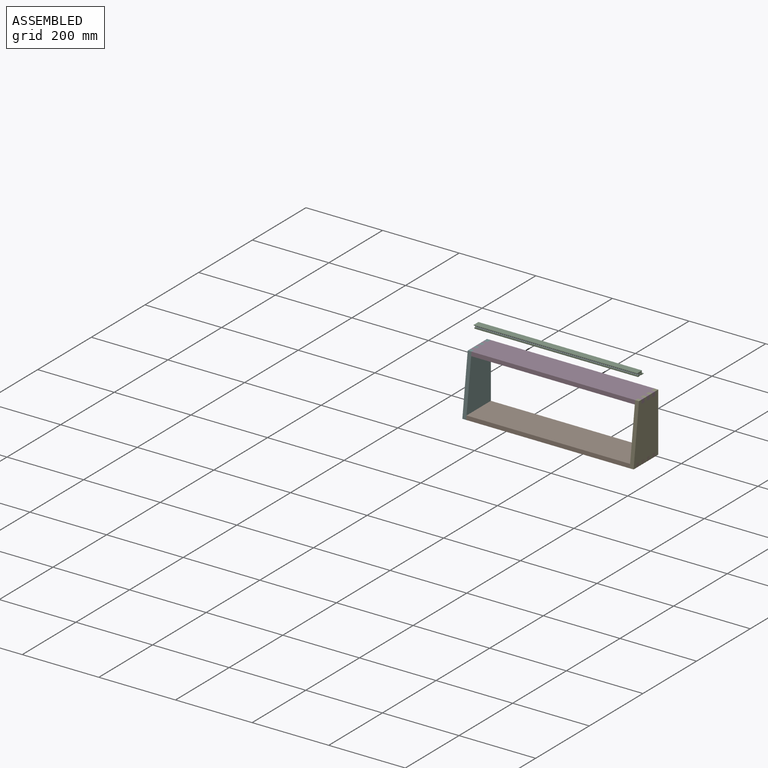
[diagram: assembled view]
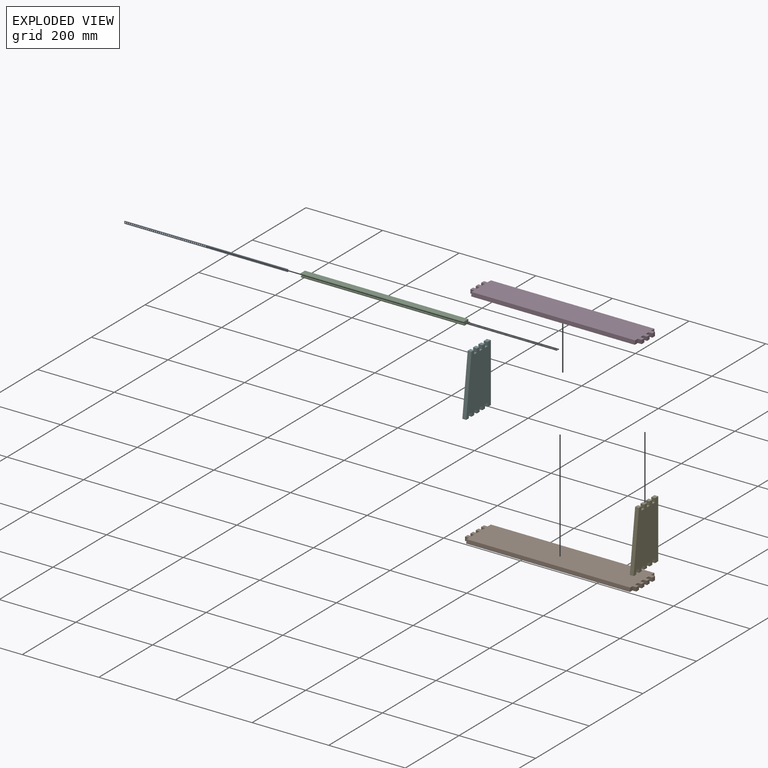
[diagram: exploded view]
GUIDED TOUR — MATED ASSEMBLY (Onshape document 4cea1732e14933e4d0d237e3, AutoMate assembly 4cea1732e14933e4d0d237e3_2bc89f323177ffd0796f1e5a_1a6dffc794c8b1332a4f0395_default)

This assembly has 6 components, labeled P0..P5 below (a component is one placed occurrence of a part; the same part can appear more than once), held together by 4 mates. A mate is a constraint between two components; its type names the relative motion it leaves free:
  FASTENED — locks the two components together rigidly (no relative motion).
Axis/direction vectors are unit vectors and 'through' points are millimeter coordinates, both in the assembly's world frame.

MATES
  1. FASTENED "Fastened 2": P1 <-> P4, direction (0.000, 0.000, -1.000) through (291.91, 82.96, -17.21) mm
  2. FASTENED "Fastened 5": P0 <-> P2, direction (1.000, 0.000, 0.000) through (63.70, 46.97, 176.22) mm
  3. FASTENED "Fastened 1": P1 <-> P5, direction (1.000, 0.000, 0.000) through (-135.09, -9.04, -17.21) mm
  4. FASTENED "Fastened 3": P3 <-> P5, direction (0.000, 0.000, -1.000) through (-145.09, 70.96, 136.19) mm

ASSEMBLY ORDER
  1. P5 — the base component [order verified]
  2. P3 [order verified]
  3. P1 [order verified]
  4. P4 [order verified]
  5. P2 [order verified]
  6. P0 [order verified]
(P1, P3 verified with a relaxed clearance tolerance: the source model stores slight part interference there.)
Order-tag legend:
  [order verified] — this step's position reverses a verified removal order: the component was checked to insert without passing through the ones already placed.

Of the 6 components, 4 carry the full construction recipe — the FeatureScript program that regenerates the part's solid from scratch; the rest are supplied as boundary geometry only.
Each toured component is shown spotlighted twice — in the assembled view, then in the exploded view, where a leader line traces a displaced component back to its assembled socket (saturated green if recipe-attached, orange if geometry-only; every other component desaturated gray) — followed by its recipe or geometry summary and the mates that hold it.
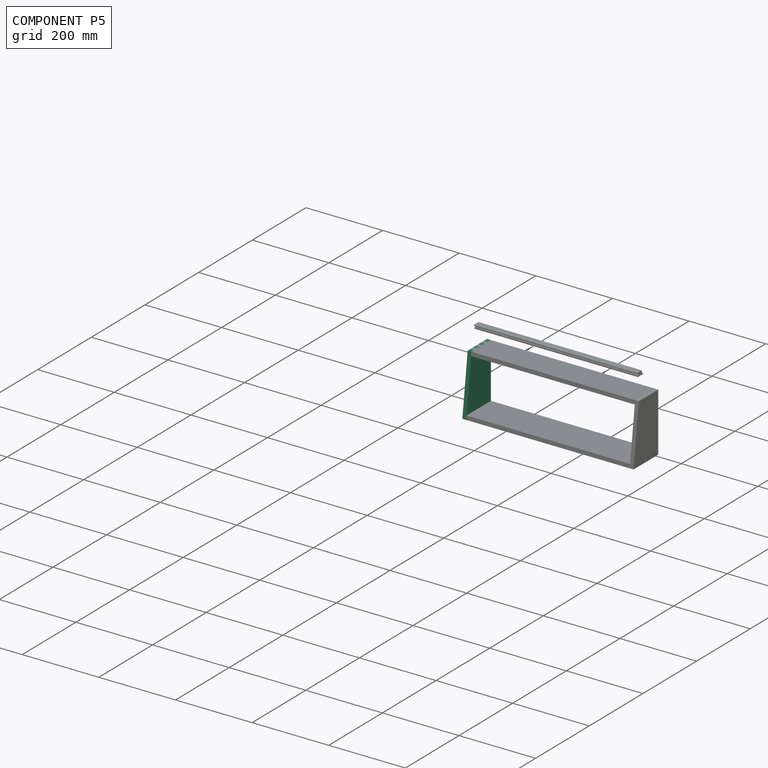
[diagram: component P5 — assembled]
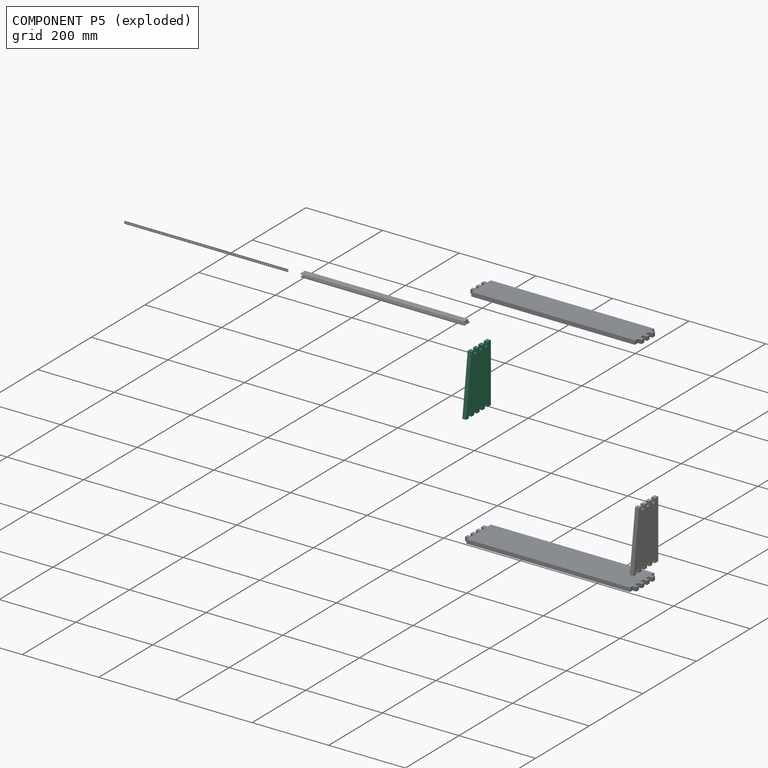
[diagram: component P5 — exploded]
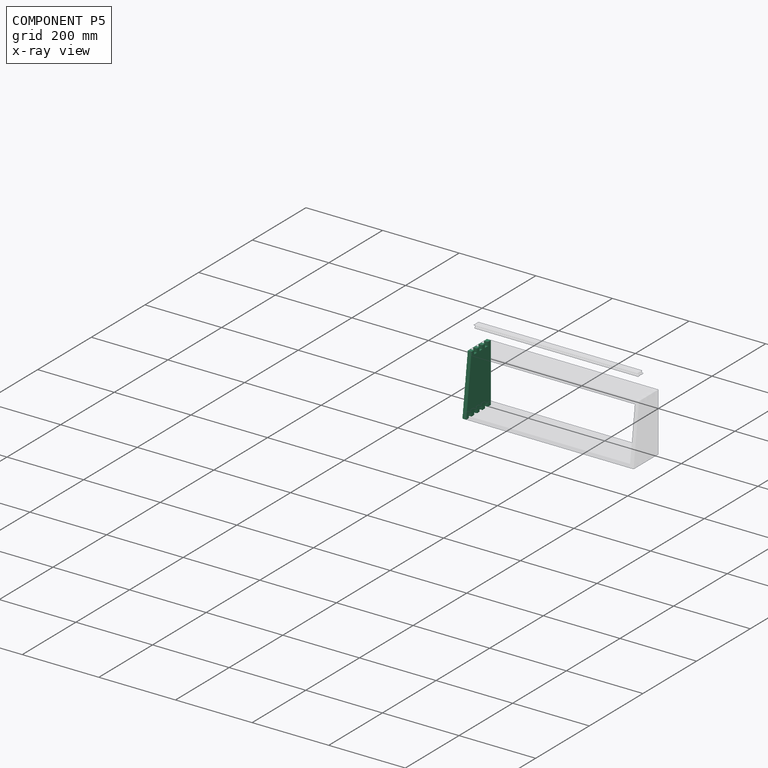
[diagram: component P5 — x-ray view]
COMPONENT P5 — same part as P4 (CADFS 00881945); its construction recipe is shown at P4.
Held by: FASTENED mate "Fastened 1" to P1; FASTENED mate "Fastened 3" to P3.
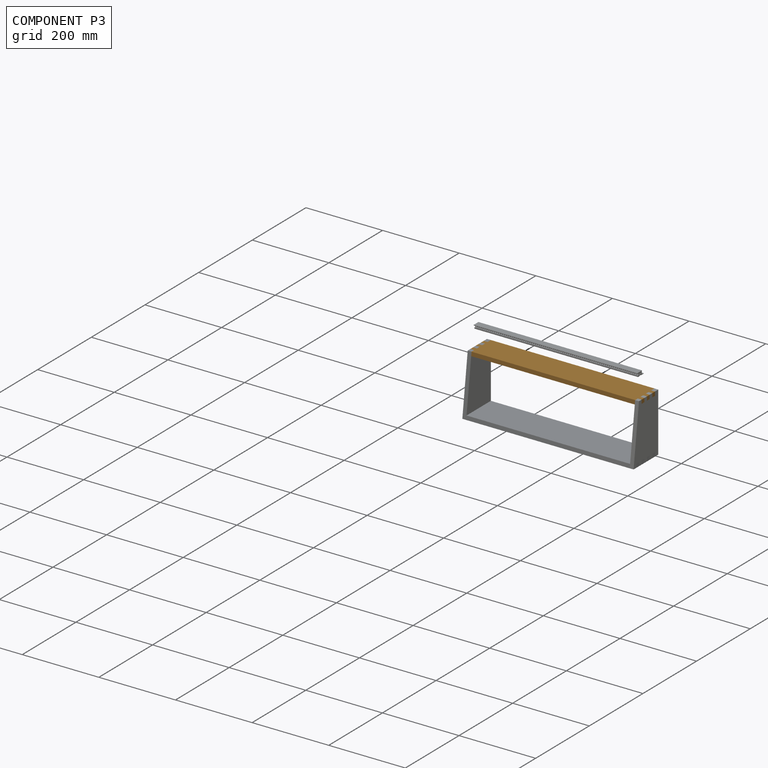
[diagram: component P3 — assembled]
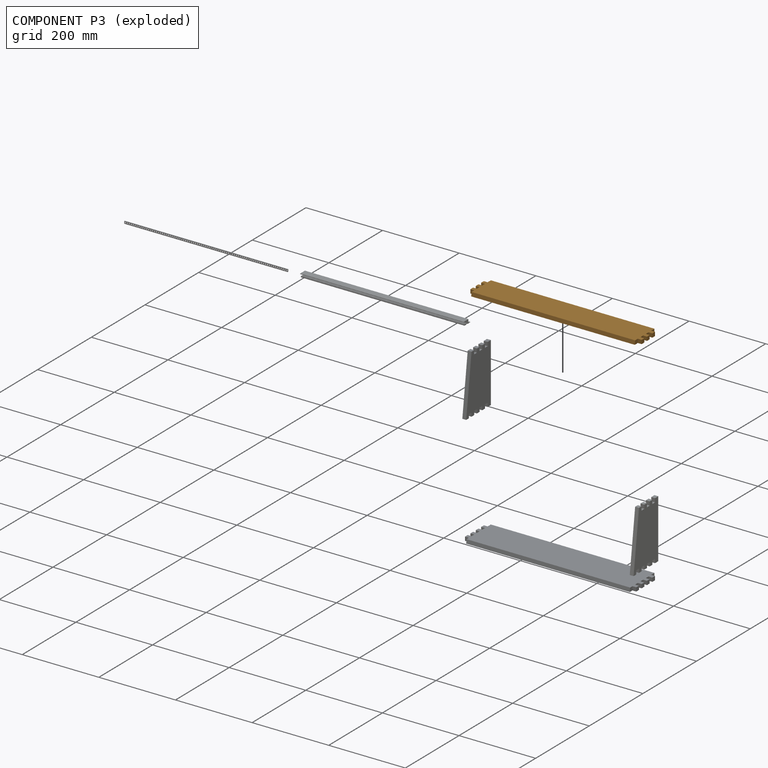
[diagram: component P3 — exploded]
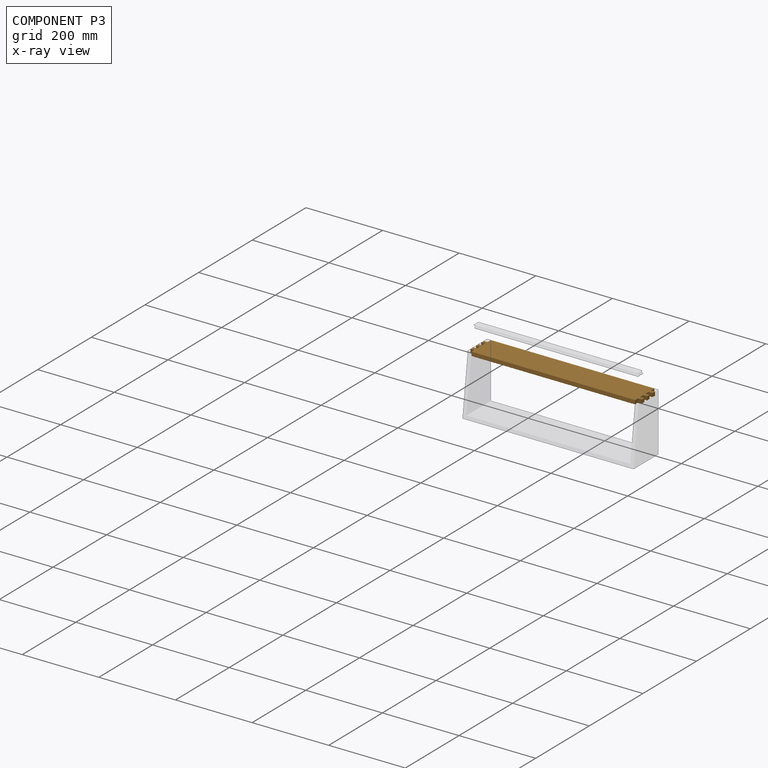
[diagram: component P3 — x-ray view]
COMPONENT P3 — geometry summary (no construction recipe available for this part):
  bounding box: 447.0 x 73.3 x 10.0 mm
  B-rep topology: 1 solid, 30 faces, 168 edges
  volume: 316224 mm^3 (97% of its bounding box)
  symmetry: 2-fold rotationally symmetric about the x axis; 2-fold rotationally symmetric about the y axis; 2-fold rotationally symmetric about the z axis; mirror-symmetric across its x mid-plane, y mid-plane, z mid-plane
Held by: FASTENED mate "Fastened 3" to P5.
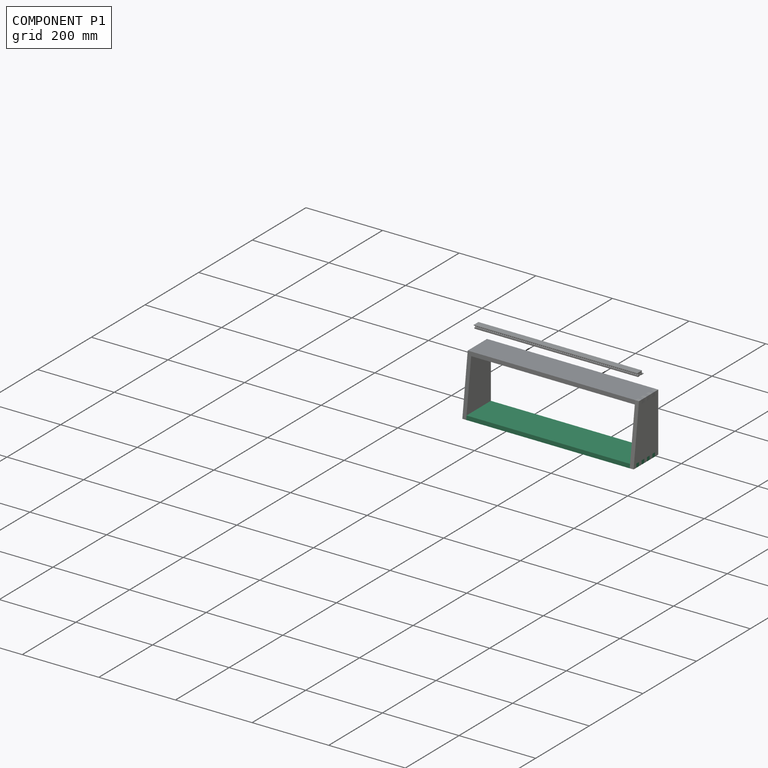
[diagram: component P1 — assembled]
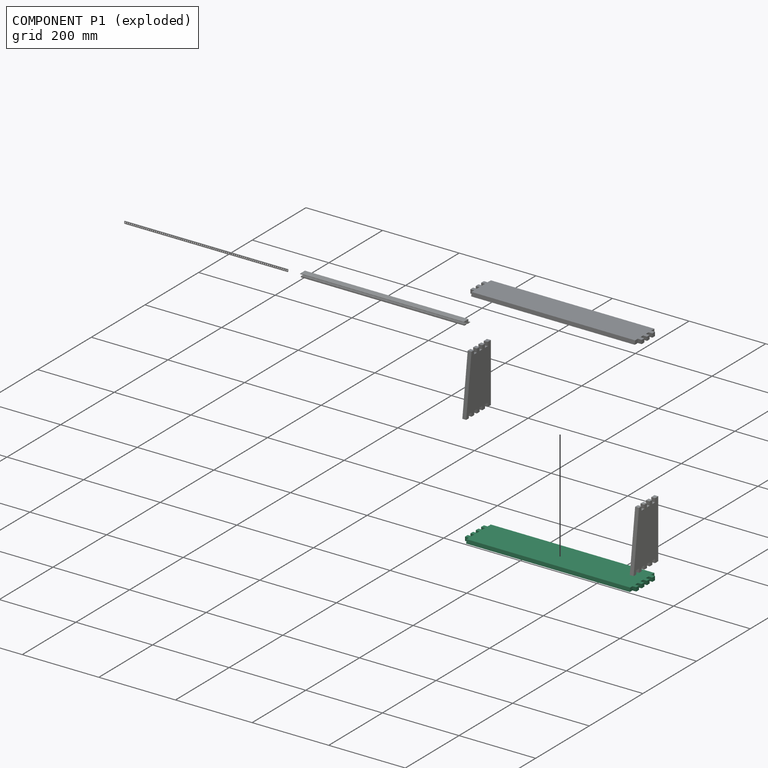
[diagram: component P1 — exploded]
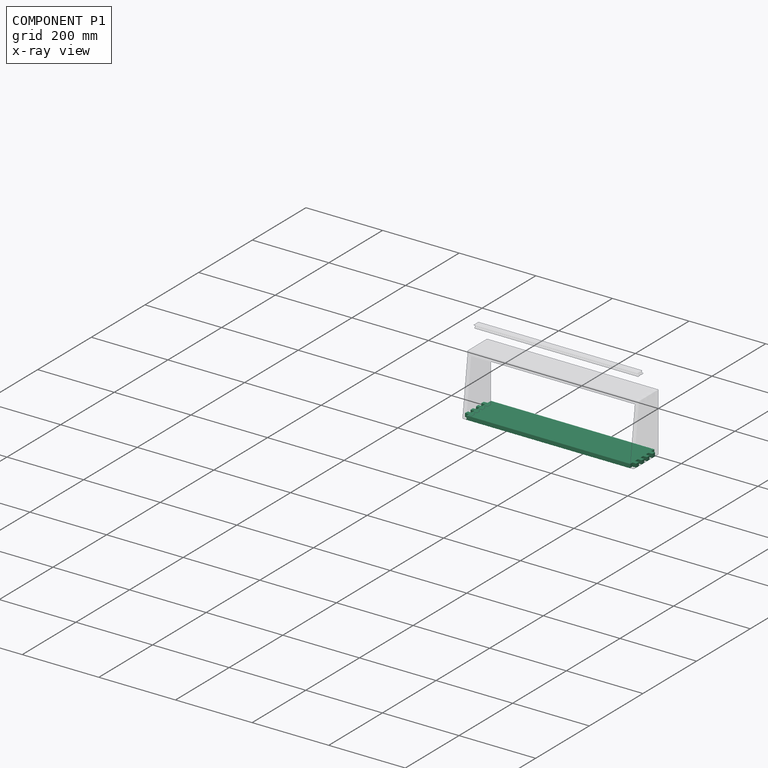
[diagram: component P1 — x-ray view]
COMPONENT P1 — recipe-attached (CADFS 00881948, mesh-verified: the recipe's output STEP matches this component's geometry to below the mesh-comparison resolution (tessellation chordal tolerance ~0.685 mm)).
Held by: FASTENED mate "Fastened 2" to P4; FASTENED mate "Fastened 1" to P5.
Construction recipe (FeatureScript — the CAD program that rebuilds this solid; sketch coordinates are in the units given by the * unit suffixes, e.g. mm):

FeatureScript 1511;
import(path : "onshape/std/geometry.fs", version : "1511.0");
import(path : "onshape/std/common.fs", version : "1511.0");
const mm = millimeter;
const VERTEX = EntityType.VERTEX;
const EDGE = EntityType.EDGE;
const FACE = EntityType.FACE;
const BODY = EntityType.BODY;
function v(x, y){return vector(x, y);}
function OD(order){return orderDisambiguation(order);}
function OSD(set){return originalSetDisambiguation(set);}
function TD(topology){return topologyDisambiguation(topology);}
function TDD(query){return trueDependencyDisambiguation(query);}
function sQuery(a, b, c) {return sketchEntityQuery(a, b, c);}

annotation { "Feature Type Name" : "Feature", "Feature Type Description" : "" }
export const myFeature = defineFeature(function(context is Context, id is Id, definition is map)
    precondition{}
    {
        {
            var Q0;
            Q0=qCreatedBy(makeId("Top.planeOp"),FACE);
            var sketch = newSketch(context, id + "F0", { "sketchPlane" : qUnion([Q0])});
            skLineSegment(sketch, "E0.bottom", {"start": v(-145.63, 56.94) * mm, "end": v(301.37, 56.94) * mm});
            skLineSegment(sketch, "E0.top", {"start": v(-145.63, -33.06) * mm, "end": v(301.37, -33.06) * mm});
            skLineSegment(sketch, "E0.left", {"start": v(-145.63, 56.94) * mm, "end": v(-145.63, -33.06) * mm});
            skLineSegment(sketch, "E0.right", {"start": v(301.37, 56.94) * mm, "end": v(301.37, -33.06) * mm});
            skLineSegment(sketch, "E1.bottom", {"start": v(-145.63, 56.94) * mm, "end": v(-135.63, 56.94) * mm});
            skLineSegment(sketch, "E1.top", {"start": v(-145.63, -33.06) * mm, "end": v(-135.63, -33.06) * mm});
            skLineSegment(sketch, "E1.right", {"start": v(-135.63, 56.94) * mm, "end": v(-135.63, -33.06) * mm});
            skLineSegment(sketch, "E2.bottom", {"start": v(301.37, 56.94) * mm, "end": v(291.37, 56.94) * mm});
            skLineSegment(sketch, "E2.top", {"start": v(301.37, -33.06) * mm, "end": v(291.37, -33.06) * mm});
            skLineSegment(sketch, "E2.right", {"start": v(291.37, 56.94) * mm, "end": v(291.37, -33.06) * mm});
            skLineSegment(sketch, "E3.left", {"start": v(-145.63, 56.94) * mm, "end": v(-145.63, 46.94) * mm});
            skLineSegment(sketch, "E4.bottom", {"start": v(291.37, 56.94) * mm, "end": v(301.37, 56.94) * mm});
            skLineSegment(sketch, "E4.top", {"start": v(291.37, 46.94) * mm, "end": v(301.37, 46.94) * mm});
            skLineSegment(sketch, "E4.left", {"start": v(291.37, 56.94) * mm, "end": v(291.37, 46.94) * mm});
            skLineSegment(sketch, "E4.right", {"start": v(301.37, 56.94) * mm, "end": v(301.37, 46.94) * mm});
            skLineSegment(sketch, "E5.MirrorCS", {"start": v(301.37, 36.94) * mm, "end": v(291.37, 36.94) * mm});
            skLineSegment(sketch, "E6.MirrorCS", {"start": v(291.37, 26.94) * mm, "end": v(301.37, 26.94) * mm});
            skLineSegment(sketch, "E7.MirrorCS", {"start": v(301.37, 16.94) * mm, "end": v(291.37, 16.94) * mm});
            skLineSegment(sketch, "E8.MirrorCS", {"start": v(291.37, 6.94) * mm, "end": v(301.37, 6.94) * mm});
            skLineSegment(sketch, "E9.MirrorCS", {"start": v(301.37, -3.06) * mm, "end": v(291.37, -3.06) * mm});
            skLineSegment(sketch, "E10.MirrorCS", {"start": v(291.37, -13.06) * mm, "end": v(301.37, -13.06) * mm});
            skLineSegment(sketch, "E11.top", {"start": v(-145.63, 46.94) * mm, "end": v(-135.63, 46.94) * mm});
            skLineSegment(sketch, "E11.right", {"start": v(-135.63, 56.94) * mm, "end": v(-135.63, 46.94) * mm});
            skLineSegment(sketch, "E12.MirrorCS", {"start": v(-145.63, 36.94) * mm, "end": v(-135.63, 36.94) * mm});
            skLineSegment(sketch, "E13.MirrorCS", {"start": v(-145.63, 26.94) * mm, "end": v(-135.63, 26.94) * mm});
            skLineSegment(sketch, "E14.MirrorCS", {"start": v(-145.63, 16.94) * mm, "end": v(-135.63, 16.94) * mm});
            skLineSegment(sketch, "E15.MirrorCS", {"start": v(-145.63, 6.94) * mm, "end": v(-135.63, 6.94) * mm});
            skLineSegment(sketch, "E16.MirrorCS", {"start": v(-145.63, -3.06) * mm, "end": v(-135.63, -3.06) * mm});
            skLineSegment(sketch, "E17.MirrorCS", {"start": v(-145.63, -13.06) * mm, "end": v(-135.63, -13.06) * mm});
            skLineSegment(sketch, "E18.MirrorCS", {"start": v(-145.63, -23.06) * mm, "end": v(-135.63, -23.06) * mm});
            skLineSegment(sketch, "E19.MirrorCS", {"start": v(301.37, -23.06) * mm, "end": v(291.37, -23.06) * mm});
            skLineSegment(sketch, "E20.bottom", {"start": v(-135.63, 56.94) * mm, "end": v(291.37, 56.94) * mm});
            skLineSegment(sketch, "E20.top", {"start": v(-135.63, 58.94) * mm, "end": v(291.37, 58.94) * mm});
            skLineSegment(sketch, "E20.left", {"start": v(-135.63, 56.94) * mm, "end": v(-135.63, 58.94) * mm});
            skLineSegment(sketch, "E20.right", {"start": v(291.37, 56.94) * mm, "end": v(291.37, 58.94) * mm});
            skSolve(sketch);
        }
        {
            var Q0;
            {var subQ0=sQuery(id+"F0.wireOp",EDGE,"E1.right");var subQ1=sQuery(id+"F0.wireOp",EDGE,"E0.bottom");var subQ2=makeQuery(id+"F0.imprint","INTERSECT",VERTEX,{"derivedFrom":[subQ1,subQ0]});Q0=makeQuery(id+"F0.imprint","IMPRINT",FACE,{"disambiguationData":[TD([[makeQuery(id+"F0.imprint","IMPRINT",EDGE,{"disambiguationData":[TD([[subQ2,-1.0]])],"derivedFrom":subQ1}),-1.0]])]});}
            var Q1;
            {var subQ0=sQuery(id+"F0.wireOp",EDGE,"E11.top");Q1=makeQuery(id+"F0.imprint","IMPRINT",FACE,{"disambiguationData":[TD([[makeQuery(id+"F0.imprint","IMPRINT",EDGE,{"derivedFrom":subQ0}),-1.0]])]});}
            var Q2;
            {var subQ0=sQuery(id+"F0.wireOp",EDGE,"E13.MirrorCS");Q2=makeQuery(id+"F0.imprint","IMPRINT",FACE,{"disambiguationData":[TD([[makeQuery(id+"F0.imprint","IMPRINT",EDGE,{"derivedFrom":subQ0}),-1.0]])]});}
            var Q3;
            {var subQ0=sQuery(id+"F0.wireOp",EDGE,"E15.MirrorCS");Q3=makeQuery(id+"F0.imprint","IMPRINT",FACE,{"disambiguationData":[TD([[makeQuery(id+"F0.imprint","IMPRINT",EDGE,{"derivedFrom":subQ0}),-1.0]])]});}
            var Q4;
            {var subQ0=sQuery(id+"F0.wireOp",EDGE,"E17.MirrorCS");Q4=makeQuery(id+"F0.imprint","IMPRINT",FACE,{"disambiguationData":[TD([[makeQuery(id+"F0.imprint","IMPRINT",EDGE,{"derivedFrom":subQ0}),-1.0]])]});}
            var Q5;
            {var subQ0=sQuery(id+"F0.wireOp",EDGE,"E4.top");Q5=makeQuery(id+"F0.imprint","IMPRINT",FACE,{"disambiguationData":[TD([[makeQuery(id+"F0.imprint","IMPRINT",EDGE,{"derivedFrom":subQ0}),-1.0]])]});}
            var Q6;
            {var subQ0=sQuery(id+"F0.wireOp",EDGE,"E6.MirrorCS");Q6=makeQuery(id+"F0.imprint","IMPRINT",FACE,{"disambiguationData":[TD([[makeQuery(id+"F0.imprint","IMPRINT",EDGE,{"derivedFrom":subQ0}),-1.0]])]});}
            var Q7;
            {var subQ0=sQuery(id+"F0.wireOp",EDGE,"E8.MirrorCS");Q7=makeQuery(id+"F0.imprint","IMPRINT",FACE,{"disambiguationData":[TD([[makeQuery(id+"F0.imprint","IMPRINT",EDGE,{"derivedFrom":subQ0}),-1.0]])]});}
            var Q8;
            {var subQ0=sQuery(id+"F0.wireOp",EDGE,"E10.MirrorCS");Q8=makeQuery(id+"F0.imprint","IMPRINT",FACE,{"disambiguationData":[TD([[makeQuery(id+"F0.imprint","IMPRINT",EDGE,{"derivedFrom":subQ0}),-1.0]])]});}
            var Q9;
            Q9=makeQuery(id+"F0.imprint","IMPRINT",FACE,{"disambiguationData":[TD([[makeQuery(id+"F0.imprint","IMPRINT",EDGE,{"derivedFrom":sQuery(id+"F0.wireOp",EDGE,"E20.top")}),-1.0]])]});
            extrude(context, id + "F1", {"entities" : qUnion([Q0, Q1, Q2, Q3, Q4, Q5, Q6, Q7, Q8, Q9]), "depth" : 10 * mm, "offsetDistance" : 25 * mm});
        }
        {
            var Q0;
            {var subQ0=sQuery(id+"F0.wireOp",EDGE,"E2.right");Q0=makeQuery(id+"F1.opExtrude","SWEPT_FACE",FACE,{"disambiguationData":[OSD([subQ0]),TDD([makeQuery(id+"F0.imprint","IMPRINT",EDGE,{"disambiguationData":[TD([[makeQuery(id+"F0.imprint","INTERSECT",VERTEX,{"derivedFrom":[sQuery(id+"F0.wireOp",EDGE,"E0.top"),subQ0]}),1.0]])],"derivedFrom":subQ0})])]});}
            var sketch = newSketch(context, id + "F2", { "sketchPlane" : qUnion([Q0])});
            skLineSegment(sketch, "E21", {"start": v(-33.06, 0) * mm, "end": v(-31.75, 10) * mm});
            skLineSegment(sketch, "E22", {"start": v(-31.75, 10) * mm, "end": v(-33.06, 10) * mm});
            skLineSegment(sketch, "E23", {"start": v(-33.06, 10) * mm, "end": v(-33.06, 0) * mm});
            skLineSegment(sketch, "E24", {"start": v(-31.75, 10) * mm, "end": v(-31.75, 19.56) * mm});
            skLineSegment(sketch, "E25", {"start": v(-31.75, 19.56) * mm, "end": v(58.94, 10) * mm});
            skLineSegment(sketch, "E26", {"start": v(58.94, 10) * mm, "end": v(-31.75, 10) * mm});
            skSolve(sketch);
        }
        {
            var Q0;
            Q0 = qSketchRegion(id + "F2", true);
            extrude(context, id + "F3", {"entities" : qUnion([Q0]), "operationType" : NewBodyOperationType.REMOVE, "oppositeDirection" : true, "depth" : 427 * mm, "offsetDistance" : 25 * mm});
        }
    });
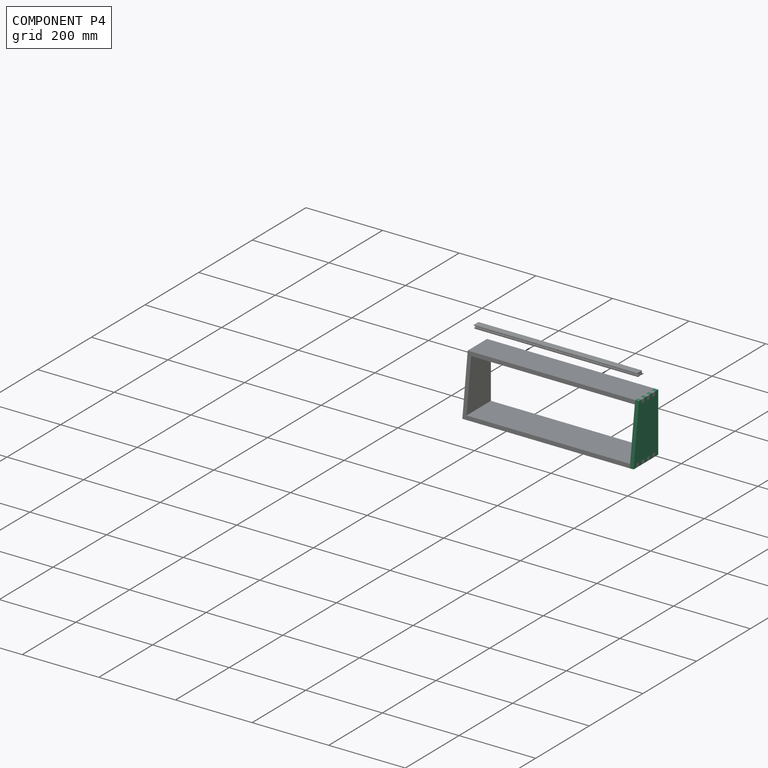
[diagram: component P4 — assembled]
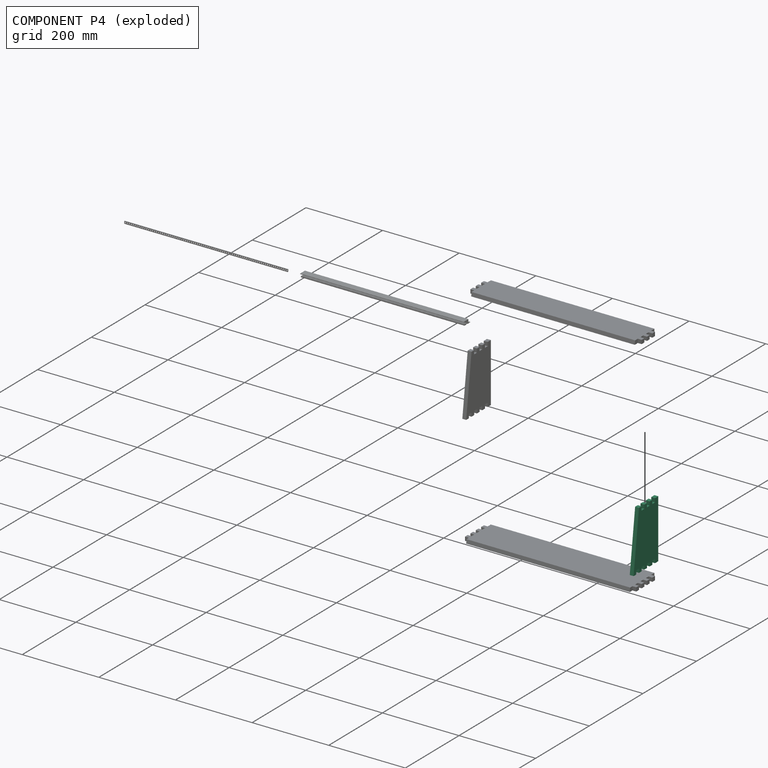
[diagram: component P4 — exploded]
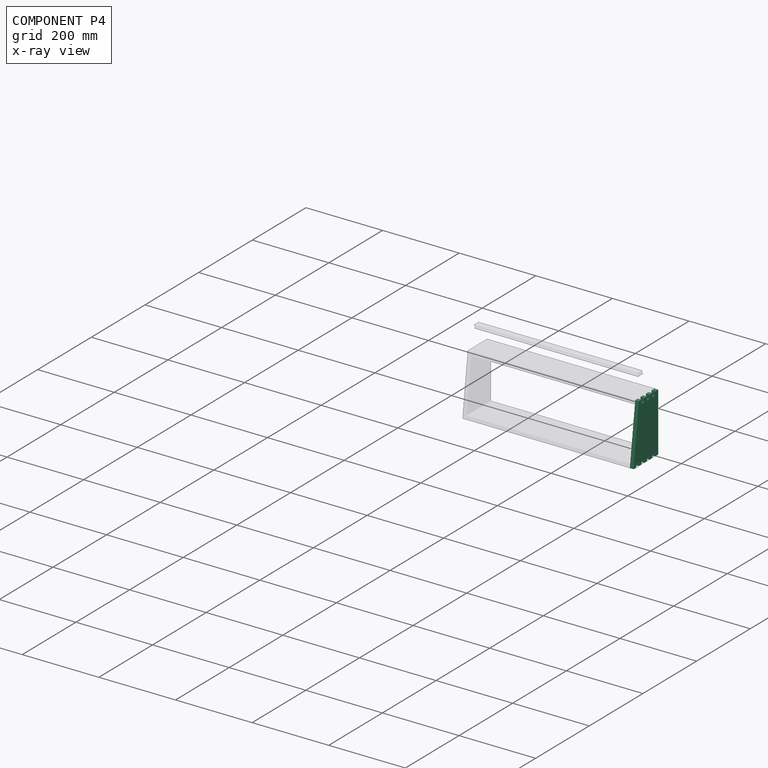
[diagram: component P4 — x-ray view]
COMPONENT P4 — recipe-attached (CADFS 00881945, mesh-verified: the recipe's output STEP matches this component's geometry to below the mesh-comparison resolution (tessellation chordal tolerance ~0.269 mm)).
Held by: FASTENED mate "Fastened 2" to P1.
Construction recipe (FeatureScript — the CAD program that rebuilds this solid; sketch coordinates are in the units given by the * unit suffixes, e.g. mm):

FeatureScript 1511;
import(path : "onshape/std/geometry.fs", version : "1511.0");
import(path : "onshape/std/common.fs", version : "1511.0");
const mm = millimeter;
const VERTEX = EntityType.VERTEX;
const EDGE = EntityType.EDGE;
const FACE = EntityType.FACE;
const BODY = EntityType.BODY;
function v(x, y){return vector(x, y);}
function OD(order){return orderDisambiguation(order);}
function OSD(set){return originalSetDisambiguation(set);}
function TD(topology){return topologyDisambiguation(topology);}
function TDD(query){return trueDependencyDisambiguation(query);}
function sQuery(a, b, c) {return sketchEntityQuery(a, b, c);}

annotation { "Feature Type Name" : "Feature", "Feature Type Description" : "" }
export const myFeature = defineFeature(function(context is Context, id is Id, definition is map)
    precondition{}
    {
        {
            var Q0;
            Q0=qCreatedBy(makeId("Top.planeOp"),FACE);
            var sketch = newSketch(context, id + "F0", { "sketchPlane" : qUnion([Q0])});
            skLineSegment(sketch, "E0.bottom", {"start": v(-145.63, 36.94) * mm, "end": v(7.77, 36.94) * mm});
            skLineSegment(sketch, "E0.top", {"start": v(-145.63, -33.06) * mm, "end": v(7.77, -33.06) * mm});
            skLineSegment(sketch, "E0.left", {"start": v(-145.63, 36.94) * mm, "end": v(-145.63, -33.06) * mm});
            skLineSegment(sketch, "E0.right", {"start": v(7.77, 36.94) * mm, "end": v(7.77, -33.06) * mm});
            skLineSegment(sketch, "E1.bottom", {"start": v(-145.63, 36.94) * mm, "end": v(-135.63, 36.94) * mm});
            skLineSegment(sketch, "E1.top", {"start": v(-145.63, -33.06) * mm, "end": v(-135.63, -33.06) * mm});
            skLineSegment(sketch, "E1.right", {"start": v(-135.63, 36.94) * mm, "end": v(-135.63, -33.06) * mm});
            skLineSegment(sketch, "E2.bottom", {"start": v(7.77, 36.94) * mm, "end": v(-2.23, 36.94) * mm});
            skLineSegment(sketch, "E2.top", {"start": v(7.77, -33.06) * mm, "end": v(-2.23, -33.06) * mm});
            skLineSegment(sketch, "E2.right", {"start": v(-2.23, 36.94) * mm, "end": v(-2.23, -33.06) * mm});
            skLineSegment(sketch, "E3.left", {"start": v(-145.63, 36.94) * mm, "end": v(-145.63, 26.94) * mm});
            skLineSegment(sketch, "E4.bottom", {"start": v(-2.23, 36.94) * mm, "end": v(7.77, 36.94) * mm});
            skLineSegment(sketch, "E4.top", {"start": v(-2.23, 26.94) * mm, "end": v(7.77, 26.94) * mm});
            skLineSegment(sketch, "E4.left", {"start": v(-2.23, 36.94) * mm, "end": v(-2.23, 26.94) * mm});
            skLineSegment(sketch, "E4.right", {"start": v(7.77, 36.94) * mm, "end": v(7.77, 26.94) * mm});
            skLineSegment(sketch, "E5.MirrorCS", {"start": v(7.77, 16.94) * mm, "end": v(-2.23, 16.94) * mm});
            skLineSegment(sketch, "E6.MirrorCS", {"start": v(-2.23, 6.94) * mm, "end": v(7.77, 6.94) * mm});
            skLineSegment(sketch, "E7.MirrorCS", {"start": v(7.77, -3.06) * mm, "end": v(-2.23, -3.06) * mm});
            skLineSegment(sketch, "E8.MirrorCS", {"start": v(-2.23, -13.06) * mm, "end": v(7.77, -13.06) * mm});
            skLineSegment(sketch, "E9.MirrorCS", {"start": v(7.77, -23.06) * mm, "end": v(-2.23, -23.06) * mm});
            skLineSegment(sketch, "E10.MirrorCS", {"start": v(-2.23, -33.06) * mm, "end": v(7.77, -33.06) * mm});
            skLineSegment(sketch, "E11.top", {"start": v(-145.63, 26.94) * mm, "end": v(-135.63, 26.94) * mm});
            skLineSegment(sketch, "E11.right", {"start": v(-135.63, 36.94) * mm, "end": v(-135.63, 26.94) * mm});
            skLineSegment(sketch, "E12.MirrorCS", {"start": v(-145.63, 16.94) * mm, "end": v(-135.63, 16.94) * mm});
            skLineSegment(sketch, "E13.MirrorCS", {"start": v(-145.63, 6.94) * mm, "end": v(-135.63, 6.94) * mm});
            skLineSegment(sketch, "E14.MirrorCS", {"start": v(-145.63, -3.06) * mm, "end": v(-135.63, -3.06) * mm});
            skLineSegment(sketch, "E15.MirrorCS", {"start": v(-145.63, -13.06) * mm, "end": v(-135.63, -13.06) * mm});
            skLineSegment(sketch, "E16.MirrorCS", {"start": v(-145.63, -23.06) * mm, "end": v(-135.63, -23.06) * mm});
            skLineSegment(sketch, "E17", {"start": v(7.77, -33.06) * mm, "end": v(7.77, -53.06) * mm});
            skLineSegment(sketch, "E18", {"start": v(7.77, -53.06) * mm, "end": v(-145.63, -33.06) * mm});
            skLineSegment(sketch, "E19", {"start": v(-2.23, -33.06) * mm, "end": v(-2.23, -51.75) * mm});
            skLineSegment(sketch, "E20.MirrorCS", {"start": v(7.77, -43.06) * mm, "end": v(-2.23, -43.06) * mm});
            skLineSegment(sketch, "E21.top", {"start": v(-145.63, 38.94) * mm, "end": v(7.77, 38.94) * mm});
            skLineSegment(sketch, "E21.left", {"start": v(-145.63, 36.94) * mm, "end": v(-145.63, 38.94) * mm});
            skLineSegment(sketch, "E21.right", {"start": v(7.77, 36.94) * mm, "end": v(7.77, 38.94) * mm});
            skLineSegment(sketch, "E22", {"start": v(-135.63, 36.94) * mm, "end": v(-135.63, -34.36) * mm, "construction": true});
            skSolve(sketch);
        }
        {
            var Q0;
            {var subQ0=sQuery(id+"F0.wireOp",EDGE,"E1.right");var subQ1=sQuery(id+"F0.wireOp",EDGE,"E0.bottom");var subQ2=makeQuery(id+"F0.imprint","INTERSECT",VERTEX,{"derivedFrom":[subQ1,subQ0]});Q0=makeQuery(id+"F0.imprint","IMPRINT",FACE,{"disambiguationData":[TD([[makeQuery(id+"F0.imprint","IMPRINT",EDGE,{"disambiguationData":[TD([[subQ2,-1.0]])],"derivedFrom":subQ1}),-1.0]])]});}
            var Q1;
            {var subQ5=sQuery(id+"F0.wireOp",EDGE,"E11.top");Q1=makeQuery(id+"F0.imprint","IMPRINT",FACE,{"disambiguationData":[TD([[makeQuery(id+"F0.imprint","IMPRINT",EDGE,{"derivedFrom":subQ5}),1.0]])]});}
            var Q2;
            {var subQ0=sQuery(id+"F0.wireOp",EDGE,"E12.MirrorCS");Q2=makeQuery(id+"F0.imprint","IMPRINT",FACE,{"disambiguationData":[TD([[makeQuery(id+"F0.imprint","IMPRINT",EDGE,{"derivedFrom":subQ0}),-1.0]])]});}
            var Q3;
            {var subQ0=sQuery(id+"F0.wireOp",EDGE,"E14.MirrorCS");Q3=makeQuery(id+"F0.imprint","IMPRINT",FACE,{"disambiguationData":[TD([[makeQuery(id+"F0.imprint","IMPRINT",EDGE,{"derivedFrom":subQ0}),-1.0]])]});}
            var Q4;
            {var subQ2=sQuery(id+"F0.wireOp",EDGE,"E16.MirrorCS");Q4=makeQuery(id+"F0.imprint","IMPRINT",FACE,{"disambiguationData":[TD([[makeQuery(id+"F0.imprint","IMPRINT",EDGE,{"derivedFrom":subQ2}),-1.0]])]});}
            var Q5;
            {var subQ5=sQuery(id+"F0.wireOp",EDGE,"f68d17bd-8033-4fb8-93ba-191072b4510d0.MirrorCS");Q5=makeQuery(id+"F0.imprint","IMPRINT",FACE,{"disambiguationData":[TD([[makeQuery(id+"F0.imprint","IMPRINT",EDGE,{"derivedFrom":subQ5}),-1.0]])]});}
            var Q6;
            {var subQ5=sQuery(id+"F0.wireOp",EDGE,"e518cc57-b2af-43e8-af13-6bb7c84993f30.MirrorCS");Q6=makeQuery(id+"F0.imprint","IMPRINT",FACE,{"disambiguationData":[TD([[makeQuery(id+"F0.imprint","IMPRINT",EDGE,{"derivedFrom":subQ5}),1.0]])]});}
            var Q7;
            {var subQ5=sQuery(id+"F0.wireOp",EDGE,"E4.top");Q7=makeQuery(id+"F0.imprint","IMPRINT",FACE,{"disambiguationData":[TD([[makeQuery(id+"F0.imprint","IMPRINT",EDGE,{"derivedFrom":subQ5}),1.0]])]});}
            var Q8;
            {var subQ0=sQuery(id+"F0.wireOp",EDGE,"E5.MirrorCS");Q8=makeQuery(id+"F0.imprint","IMPRINT",FACE,{"disambiguationData":[TD([[makeQuery(id+"F0.imprint","IMPRINT",EDGE,{"derivedFrom":subQ0}),1.0]])]});}
            var Q9;
            {var subQ0=sQuery(id+"F0.wireOp",EDGE,"E7.MirrorCS");Q9=makeQuery(id+"F0.imprint","IMPRINT",FACE,{"disambiguationData":[TD([[makeQuery(id+"F0.imprint","IMPRINT",EDGE,{"derivedFrom":subQ0}),1.0]])]});}
            var Q10;
            {var subQ0=sQuery(id+"F0.wireOp",EDGE,"E9.MirrorCS");Q10=makeQuery(id+"F0.imprint","IMPRINT",FACE,{"disambiguationData":[TD([[makeQuery(id+"F0.imprint","IMPRINT",EDGE,{"derivedFrom":subQ0}),1.0]])]});}
            var Q11;
            {var subQ0=sQuery(id+"F0.wireOp",EDGE,"E19");var subQ5=sQuery(id+"F0.wireOp",EDGE,"E18");var subQ7=makeQuery(id+"F0.imprint","INTERSECT",VERTEX,{"derivedFrom":[subQ5,subQ0]});Q11=makeQuery(id+"F0.imprint","IMPRINT",FACE,{"disambiguationData":[TD([[makeQuery(id+"F0.imprint","IMPRINT",EDGE,{"disambiguationData":[TD([[subQ7,1.0]])],"derivedFrom":subQ0}),-1.0]])]});}
            var Q12;
            {var subQ3=sQuery(id+"F0.wireOp",EDGE,"E20.MirrorCS");Q12=makeQuery(id+"F0.imprint","IMPRINT",FACE,{"disambiguationData":[TD([[makeQuery(id+"F0.imprint","IMPRINT",EDGE,{"derivedFrom":subQ3}),1.0]])]});}
            var Q13;
            Q13=makeQuery(id+"F0.imprint","IMPRINT",FACE,{"disambiguationData":[TD([[makeQuery(id+"F0.imprint","IMPRINT",EDGE,{"derivedFrom":sQuery(id+"F0.wireOp",EDGE,"E21.top")}),-1.0]])]});
            extrude(context, id + "F1", {"entities" : qUnion([Q0, Q1, Q2, Q3, Q4, Q5, Q6, Q7, Q8, Q9, Q10, Q11, Q12, Q13]), "depth" : 10 * mm, "offsetDistance" : 25 * mm});
        }
    });
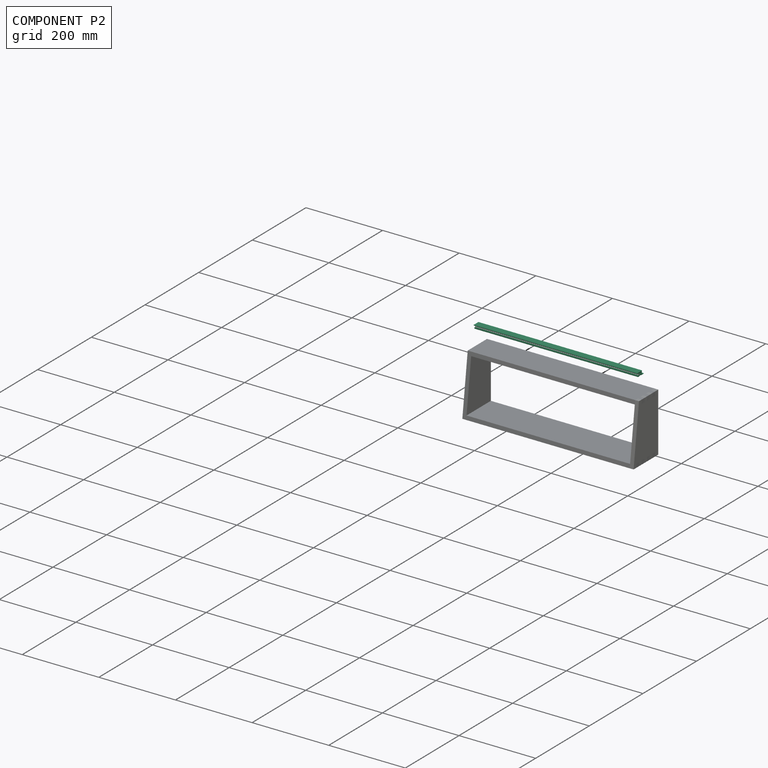
[diagram: component P2 — assembled]
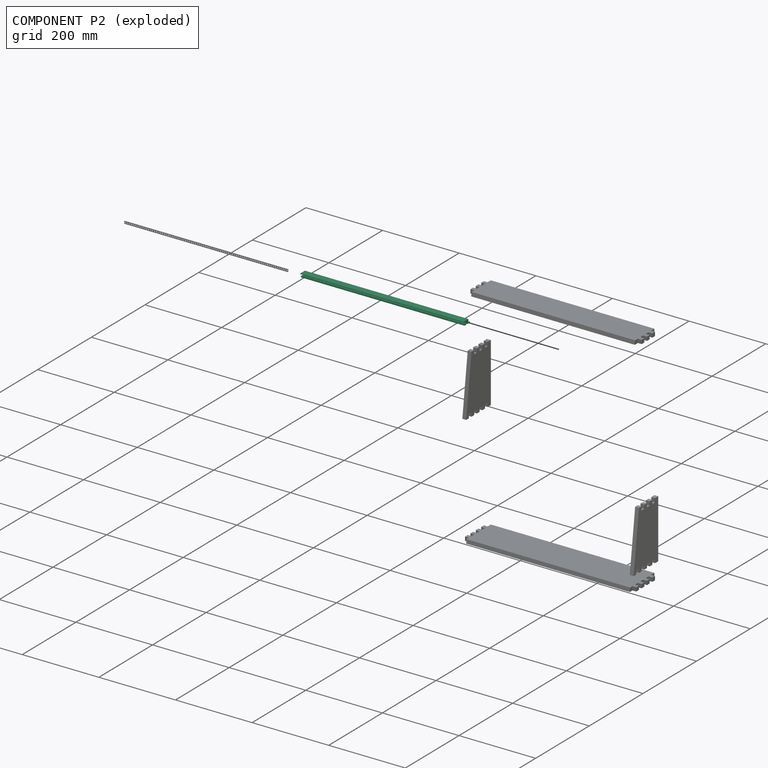
[diagram: component P2 — exploded]
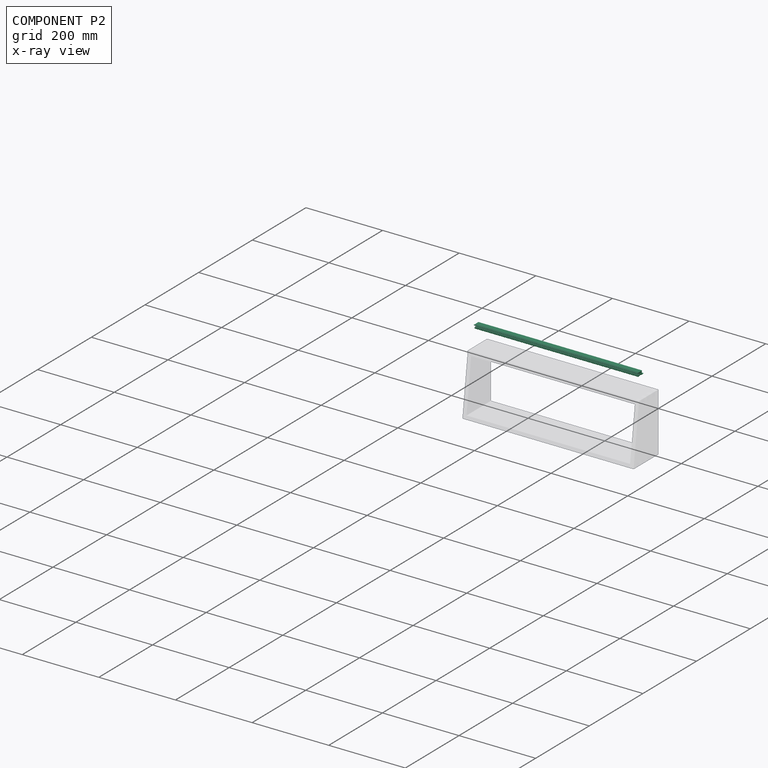
[diagram: component P2 — x-ray view]
COMPONENT P2 — recipe-attached (CADFS 00881941, mesh-verified: the recipe's output STEP matches this component's geometry to below the mesh-comparison resolution (tessellation chordal tolerance ~0.642 mm)).
Held by: FASTENED mate "Fastened 5" to P0.
Construction recipe (FeatureScript — the CAD program that rebuilds this solid; sketch coordinates are in the units given by the * unit suffixes, e.g. mm):

FeatureScript 1511;
import(path : "onshape/std/geometry.fs", version : "1511.0");
import(path : "onshape/std/common.fs", version : "1511.0");
const mm = millimeter;
const VERTEX = EntityType.VERTEX;
const EDGE = EntityType.EDGE;
const FACE = EntityType.FACE;
const BODY = EntityType.BODY;
function v(x, y){return vector(x, y);}
function OD(order){return orderDisambiguation(order);}
function OSD(set){return originalSetDisambiguation(set);}
function TD(topology){return topologyDisambiguation(topology);}
function TDD(query){return trueDependencyDisambiguation(query);}
function sQuery(a, b, c) {return sketchEntityQuery(a, b, c);}

annotation { "Feature Type Name" : "Feature", "Feature Type Description" : "" }
export const myFeature = defineFeature(function(context is Context, id is Id, definition is map)
    precondition{}
    {
        {
            assignVariable(context, id + "F0", {"name" : "length", "anyValue" : 427});
        }
        {
            var Q0;
            Q0=qCreatedBy(makeId("Right.planeOp"),FACE);
            var sketch = newSketch(context, id + "F1", { "sketchPlane" : qUnion([Q0])});
            skLineSegment(sketch, "E0.top", {"start": v(-37.38, 18.75) * mm, "end": v(-34.58, 18.75) * mm});
            skLineSegment(sketch, "E1", {"start": v(-37.38, 19.95) * mm, "end": v(-37.38, 18.75) * mm});
            skLineSegment(sketch, "E2.top", {"start": v(-13.58, 11.15) * mm, "end": v(-19.58, 11.15) * mm});
            skLineSegment(sketch, "E3", {"start": v(-37.38, 19.95) * mm, "end": v(-19.58, 19.95) * mm});
            skLineSegment(sketch, "E4", {"start": v(-13.58, 11.15) * mm, "end": v(-13.58, 9.95) * mm});
            skLineSegment(sketch, "E5.bottom", {"start": v(-19.58, 19.95) * mm, "end": v(-21.58, 19.95) * mm});
            skLineSegment(sketch, "E5.top", {"start": v(-19.58, 18.75) * mm, "end": v(-21.58, 18.75) * mm});
            skLineSegment(sketch, "E5.left", {"start": v(-19.58, 19.95) * mm, "end": v(-19.58, 18.75) * mm});
            skLineSegment(sketch, "E6.bottom", {"start": v(-21.58, 18.75) * mm, "end": v(-19.58, 18.75) * mm});
            skLineSegment(sketch, "E6.top", {"start": v(-21.58, 17.35) * mm, "end": v(-19.58, 17.35) * mm});
            skLineSegment(sketch, "E6.left", {"start": v(-21.58, 18.75) * mm, "end": v(-21.58, 17.35) * mm});
            skLineSegment(sketch, "E7.right", {"start": v(-26.98, 12.95) * mm, "end": v(-26.98, 16.95) * mm});
            skLineSegment(sketch, "E8", {"start": v(-34.58, 18.75) * mm, "end": v(-34.58, 16.95) * mm});
            skLineSegment(sketch, "E9.bottom", {"start": v(-34.58, 12.95) * mm, "end": v(-32.32, 12.95) * mm});
            skLineSegment(sketch, "E9.right", {"start": v(-32.32, 12.95) * mm, "end": v(-32.32, 11.7) * mm});
            skLineSegment(sketch, "E10.bottom", {"start": v(-32.32, 11.7) * mm, "end": v(-30.33, 11.7) * mm});
            skLineSegment(sketch, "E10.top", {"start": v(-32.32, 18.2) * mm, "end": v(-30.33, 18.2) * mm});
            skLineSegment(sketch, "E11", {"start": v(-34.58, 12.95) * mm, "end": v(-34.58, 9.95) * mm});
            skLineSegment(sketch, "E12", {"start": v(-34.58, 16.95) * mm, "end": v(-32.32, 16.95) * mm});
            skLineSegment(sketch, "E13", {"start": v(-26.98, 16.95) * mm, "end": v(-30.33, 16.95) * mm});
            skLineSegment(sketch, "E14", {"start": v(-32.32, 18.2) * mm, "end": v(-32.32, 16.95) * mm});
            skLineSegment(sketch, "E15", {"start": v(-26.98, 12.95) * mm, "end": v(-30.33, 12.95) * mm});
            skLineSegment(sketch, "E16", {"start": v(-30.33, 18.2) * mm, "end": v(-30.33, 16.95) * mm});
            skLineSegment(sketch, "E17", {"start": v(-30.33, 12.95) * mm, "end": v(-30.33, 11.7) * mm});
            skLineSegment(sketch, "E18.bottom", {"start": v(-19.58, 15.55) * mm, "end": v(-21.58, 15.55) * mm});
            skLineSegment(sketch, "E18.top", {"start": v(-19.58, 14.35) * mm, "end": v(-21.58, 14.35) * mm});
            skLineSegment(sketch, "E18.right", {"start": v(-21.58, 15.55) * mm, "end": v(-21.58, 14.35) * mm});
            skLineSegment(sketch, "E19", {"start": v(-19.58, 17.35) * mm, "end": v(-19.58, 15.55) * mm});
            skLineSegment(sketch, "E20", {"start": v(-19.58, 14.35) * mm, "end": v(-19.58, 11.15) * mm});
            skLineSegment(sketch, "E21.bottom", {"start": v(-13.58, 9.95) * mm, "end": v(-23.08, 9.95) * mm});
            skLineSegment(sketch, "E22.top", {"start": v(-23.08, 11.15) * mm, "end": v(-28.08, 11.15) * mm});
            skLineSegment(sketch, "E22.right", {"start": v(-28.08, 9.95) * mm, "end": v(-28.08, 11.15) * mm});
            skLineSegment(sketch, "E23", {"start": v(-34.58, 9.95) * mm, "end": v(-28.08, 9.95) * mm});
            skLineSegment(sketch, "E24", {"start": v(-23.08, 11.15) * mm, "end": v(-23.08, 9.95) * mm});
            skSolve(sketch);
        }
        {
            var Q0;
            Q0=qSketchRegion(id+"F1",true);
            extrude(context, id + "F2", {"entities" : qUnion([Q0]), "depth" : (getVariable(context, 'length')) * mm, "offsetDistance" : 25 * mm});
        }
        {
            var Q0;
            Q0=makeQuery(id+"F2.opExtrude","CAP_FACE",FACE,{"disambiguationData":[OSD([sQuery(id+"F1.wireOp",EDGE,"E0.top"),sQuery(id+"F1.wireOp",EDGE,"E0.right"),sQuery(id+"F1.wireOp",EDGE,"E1"),sQuery(id+"F1.wireOp",EDGE,"7WjtD8Os-DvTV-xx7e-wsHr-O7i4Oa3QZQYs"),sQuery(id+"F1.wireOp",EDGE,"E2.top"),sQuery(id+"F1.wireOp",EDGE,"E3"),sQuery(id+"F1.wireOp",EDGE,"E4"),sQuery(id+"F1.wireOp",EDGE,"E5.bottom"),sQuery(id+"F1.wireOp",EDGE,"E5.left"),sQuery(id+"F1.wireOp",EDGE,"E6.bottom"),sQuery(id+"F1.wireOp",EDGE,"E6.top"),sQuery(id+"F1.wireOp",EDGE,"E6.left"),sQuery(id+"F1.wireOp",EDGE,"5xcxBood-YYAR-WB05-Kpwu-UJQrYywPCwEj")])],"isStart":false});
            var sketch = newSketch(context, id + "F3", { "sketchPlane" : qUnion([Q0])});
            skCircle(sketch, "E25", {"center": v(-24.43, 14.95) * mm, "radius": 1.5 * mm});
            skSolve(sketch);
        }
        {
            var Q0;
            Q0=qSketchRegion(id+"F3",true);
            extrude(context, id + "F4", {"entities" : qUnion([Q0]), "operationType" : NewBodyOperationType.REMOVE, "oppositeDirection" : true, "depth" : (getVariable(context, 'length')) * mm, "offsetDistance" : 25 * mm});
        }
    });
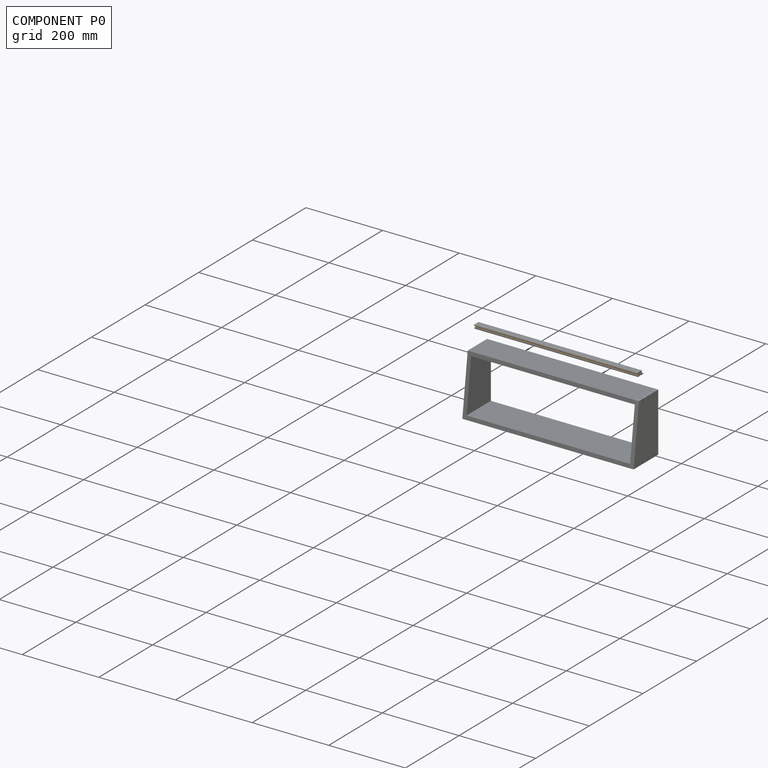
[diagram: component P0 — assembled]
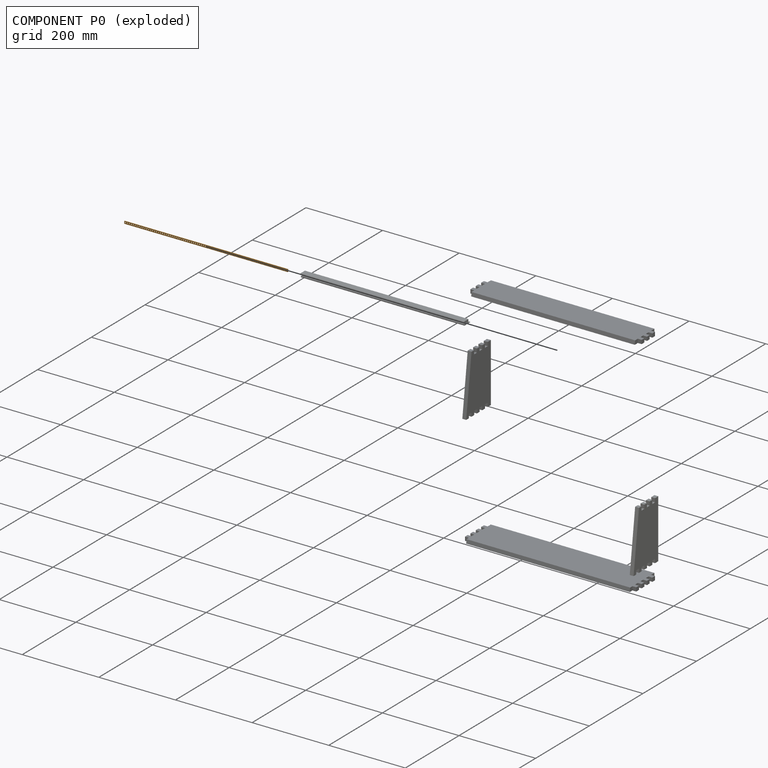
[diagram: component P0 — exploded]
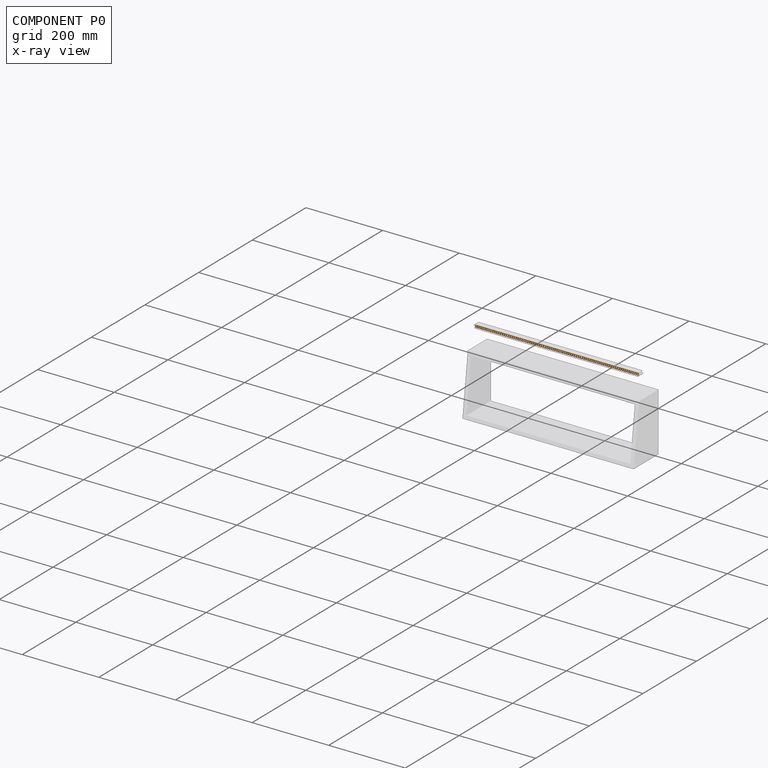
[diagram: component P0 — x-ray view]
COMPONENT P0 — geometry summary (no construction recipe available for this part):
  bounding box: 426.7 x 6.4 x 2.0 mm
  B-rep topology: 1 solid, 90 faces, 528 edges
  volume: 4029 mm^3 (75% of its bounding box)
  symmetry: revolution-symmetric about the x axis through its bounding-box center; 2-fold rotationally symmetric about the y axis; 2-fold rotationally symmetric about the z axis; mirror-symmetric across its x mid-plane, y mid-plane, z mid-plane
Held by: FASTENED mate "Fastened 5" to P2.
PROVENANCE & LICENSES
Assembly (occurrences, transforms, mates, per-part STEP geometry): AutoMate dataset, Zenodo record 7776208, CC0.
Construction recipes: CADFS (HuggingFace VladPyatov/CADFS, CC-BY-4.0, layered over the ABC dataset), FeatureScript reconstruction programs keyed by ABC model id.
Join: ABC meta listings map ABC model id -> Onshape documentId; within a shared document, parts are matched by geometric signature (bounding-box dims + volume at 0.1% relative tolerance, exact B-rep face/solid counts).
Verification: 4 of this assembly's 6 components carry a recipe attachment, and every attachment is mesh-verified: the CADFS STEP and the AutoMate member STEP were compared as meshes in their shared local frame (symmetric sampled-point-to-mesh distance); worst across the 4 attachments: below the mesh-comparison resolution (tessellation chordal tolerance ~0.685 mm) on a 456 mm part.
Renders: orthographic iso camera (az 35 / el 25); the floor grid conveys scale (grid pitch printed in each image; no ruler). In the exploded view each component is displaced by its stored offset vector: the offsets alone carry the explosion direction (mate normal/axis signs are not orientation cues and do not encode it), and separation distances are assigned per mate-chain, not proportionally to assembly-order depth.
